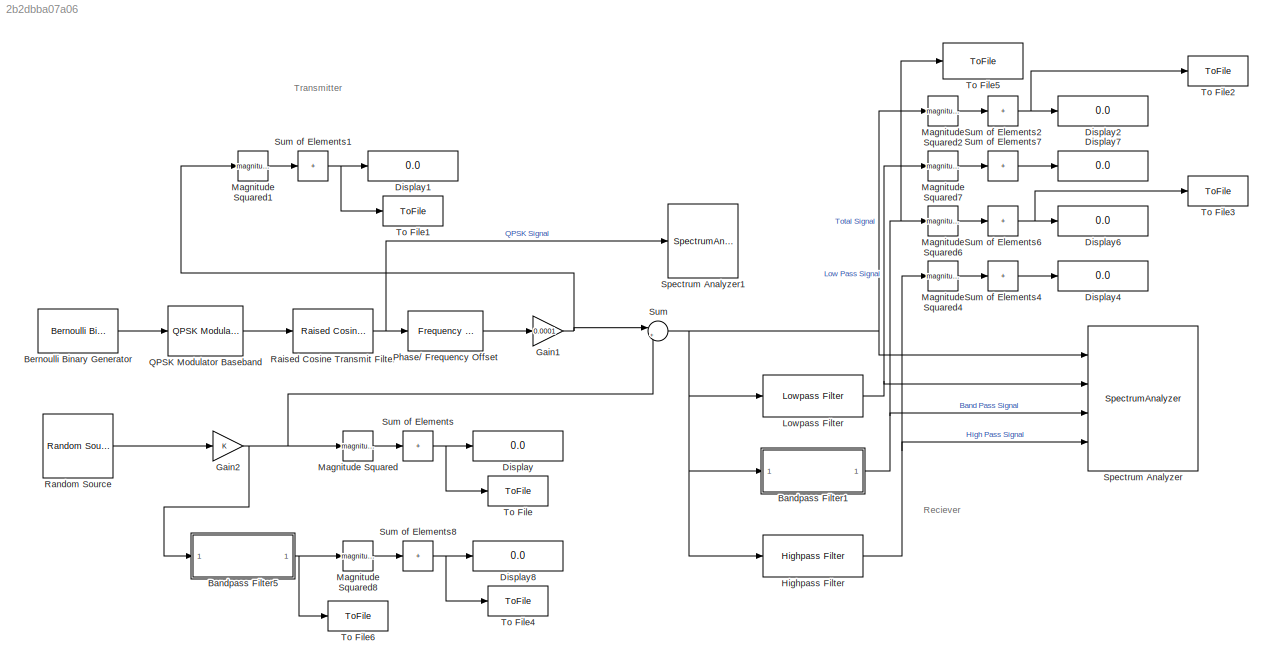
MODEL slx_2b2dbba07a06
KIND model
CONFIG AbsTol = auto
CONFIG EnableMultiTasking = off
CONFIG FixedStep = auto
CONFIG MaxStep = auto
CONFIG MinStep = auto
CONFIG RelTol = 1e-3
CONFIG SampleTimeConstraint = Unconstrained
CONFIG SolverName = FixedStepDiscrete
CONFIG StartTime = 0.0
CONFIG StopTime = 100
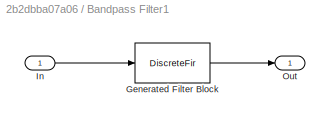
BLOCK [SubSystem] Bandpass Filter1
  CopyFcn = fdesignblkfcn(gcbh, {'CopyFcn'});
  DialogController = fdesignblkfcn
  InitFcn = fdesignblkfcn(gcbh, {'InitFcn'});
  Ports = [1, 1]
  RequestExecContextInheritance = off
  UserDataPersistent = on
BLOCK [DiscreteFir] Bandpass Filter1/Generated Filter Block
  Coefficients = [-0.00121889259374306043 -4.6471804164866279e-08 0.0022568060688219157 1.71088361680865877e-07 0.00277263523316290464 -3.91787000503089673e-07 -0.0194126295457396937 5.96679699808125005e-07 0.0393950026121096392 -6.5164419275998585e-07 -0.0344159794027284888 4.7046709147951619e-07 -0.0257306182897297508 -1.75073104912854821e-07 0.138632970079688084 -4.06676534540085174e-08 -0.253908540757038725 4....<+463ch>
  InputPortMap = u0
  InputProcessing = Columns as channels (frame based)
  OutputPortMap = o0
  Ports = [1, 1]
  Tag = BlockMethodSubSystem
BLOCK [Inport] Bandpass Filter1/In
BLOCK [Outport] Bandpass Filter1/Out
  VectorParamsAs1DForOutWhenUnconnected = off
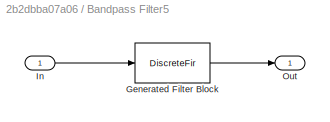
BLOCK [SubSystem] Bandpass Filter5
  CopyFcn = fdesignblkfcn(gcbh, {'CopyFcn'});
  DialogController = fdesignblkfcn
  InitFcn = fdesignblkfcn(gcbh, {'InitFcn'});
  Ports = [1, 1]
  RequestExecContextInheritance = off
  UserDataPersistent = on
BLOCK [DiscreteFir] Bandpass Filter5/Generated Filter Block
  Coefficients = [0.00732042010249847608 0.0106282918763365309 -0.00704818145835509492 -0.0139774864976023126 0.00139251813232264278 0.00103573235549302947 -0.0032720074229586559 0.00719192846207008032 0.00376555578256326622 0.00164698563023850625 0.0100490589250385037 0.00319517982739197376 0.00375186900268913246 0.0102804221955299854 0.000530639608501540564 0.00500797317880307107 0.00836056668232693263 -0.002763...<+1934ch>
  InputPortMap = u0
  InputProcessing = Columns as channels (frame based)
  OutputPortMap = o0
  Ports = [1, 1]
  Tag = BlockMethodSubSystem
BLOCK [Inport] Bandpass Filter5/In
BLOCK [Outport] Bandpass Filter5/Out
  VectorParamsAs1DForOutWhenUnconnected = off
BLOCK [Reference] Bernoulli Binary Generator  REF=commrandsrc3/Bernoulli Binary
Generator
  Ports = [0, 1]
  SourceBlock = commrandsrc3/Bernoulli Binary\nGenerator
  SourceProductBaseCode = CM
  SourceType = Bernoulli Binary Generator
BLOCK [Display] Display
  Decimation = 1
  Ports = [1]
BLOCK [Display] Display1
  Decimation = 1
  Ports = [1]
BLOCK [Display] Display2
  Decimation = 1
  Ports = [1]
BLOCK [Display] Display4
  Decimation = 1
  Ports = [1]
BLOCK [Display] Display6
  Decimation = 1
  Ports = [1]
BLOCK [Display] Display7
  Decimation = 1
  Ports = [1]
BLOCK [Display] Display8
  Decimation = 1
  Ports = [1]
BLOCK [Gain] Gain1
  Gain = 0.0001
BLOCK [Gain] Gain2
BLOCK [Reference] Highpass Filter  REF=dspfdesign/Highpass Filter
  Ports = [1, 1]
  SourceBlock = dspfdesign/Highpass Filter
  SourceProductBaseCode = DS
  SourceType = dsp.HighpassFilter
BLOCK [Reference] Lowpass Filter  REF=dspfdesign/Lowpass Filter
  Ports = [1, 1]
  SourceBlock = dspfdesign/Lowpass Filter
  SourceProductBaseCode = DS
  SourceType = dsp.LowpassFilter
BLOCK [Math] Magnitude Squared
  Operator = magnitude^2
  Ports = [1, 1]
BLOCK [Math] Magnitude Squared1
  Operator = magnitude^2
  Ports = [1, 1]
BLOCK [Math] Magnitude Squared2
  Operator = magnitude^2
  Ports = [1, 1]
BLOCK [Math] Magnitude Squared4
  Operator = magnitude^2
  Ports = [1, 1]
BLOCK [Math] Magnitude Squared6
  Operator = magnitude^2
  Ports = [1, 1]
BLOCK [Math] Magnitude Squared7
  Operator = magnitude^2
  Ports = [1, 1]
BLOCK [Math] Magnitude Squared8
  Operator = magnitude^2
  Ports = [1, 1]
BLOCK [Reference] Phase// Frequency Offset  REF=commrflib2/Phase//
Frequency
Offset
  Ports = [1, 1]
  SourceBlock = commrflib2/Phase//\nFrequency\nOffset
  SourceProductBaseCode = CM
  SourceType = Phase/Frequency Offset
BLOCK [Reference] QPSK Modulator Baseband  REF=commdigbbndpm3/QPSK
Modulator
Baseband
  Ports = [1, 1]
  SourceBlock = commdigbbndpm3/QPSK\nModulator\nBaseband
  SourceProductBaseCode = CM
  SourceType = QPSK Modulator Baseband
BLOCK [Reference] Raised Cosine Transmit Filter  REF=commfilt2/Raised Cosine
Transmit Filter
  Ports = [1, 1]
  SourceBlock = commfilt2/Raised Cosine\nTransmit Filter
  SourceProductBaseCode = CM
  SourceType = Raised Cosine Transmit Filter
  UserDataPersistent = on
BLOCK [Reference] Random Source  REF=dspsrcs4/Random
Source
  Ports = [0, 1]
  SourceBlock = dspsrcs4/Random\nSource
  SourceProductBaseCode = DS
  SourceType = Random Source
  UserDataPersistent = on
BLOCK [SpectrumAnalyzer] Spectrum Analyzer
  NumInputPorts = 4
  Ports = [4]
  ScopeSpecificationString = spbscopes.SpectrumAnalyzerBlockCfg('CurrentConfiguration', extmgr.ConfigurationSet(extmgr.Configuration('Core','General UI',true,'FigureColor',[1 1 1]),extmgr.Configuration('Core','Source UI',true),extmgr.Configuration('Sources','WiredSimulink',true),extmgr.Configuration('Visuals','Spectrum',true,'AxesProperties',struct('Color',{[1 1 1],[1 1 1]},'XColor',{[0 0 0],[0 0 0]},'YColor',{[0 0 0],[0 0 0]...<+1875ch>
BLOCK [SpectrumAnalyzer] Spectrum Analyzer1
  Ports = [1]
  ScopeSpecificationString = spbscopes.SpectrumAnalyzerBlockCfg('CurrentConfiguration', extmgr.ConfigurationSet(extmgr.Configuration('Core','General UI',true),extmgr.Configuration('Core','Source UI',true),extmgr.Configuration('Sources','WiredSimulink',true),extmgr.Configuration('Visuals','Spectrum',true,'AxesProperties',struct('Color',{[0 0 0],[0 0 0]},'XColor',{[0.686274509803922 0.686274509803922 0.686274509803922],[0.68627...<+1880ch>
BLOCK [Sum] Sum
  Inputs = |++
  Ports = [2, 1]
BLOCK [Sum] Sum of Elements
  IconShape = rectangular
  Inputs = +
  Ports = [1, 1]
BLOCK [Sum] Sum of Elements1
  IconShape = rectangular
  Inputs = +
  Ports = [1, 1]
BLOCK [Sum] Sum of Elements2
  IconShape = rectangular
  Inputs = +
  Ports = [1, 1]
BLOCK [Sum] Sum of Elements4
  IconShape = rectangular
  Inputs = +
  Ports = [1, 1]
BLOCK [Sum] Sum of Elements6
  IconShape = rectangular
  Inputs = +
  Ports = [1, 1]
BLOCK [Sum] Sum of Elements7
  IconShape = rectangular
  Inputs = +
  Ports = [1, 1]
BLOCK [Sum] Sum of Elements8
  IconShape = rectangular
  Inputs = +
  Ports = [1, 1]
BLOCK [ToFile] To File
  Filename = noise
  Ports = [1]
  SaveFormat = Timeseries
BLOCK [ToFile] To File1
  Filename = sig
  Ports = [1]
  SaveFormat = Timeseries
BLOCK [ToFile] To File2
  Filename = sig_noise
  Ports = [1]
  SaveFormat = Timeseries
BLOCK [ToFile] To File3
  Filename = sig_noise_bw
  Ports = [1]
  SaveFormat = Timeseries
BLOCK [ToFile] To File4
  Filename = noise_bw
  Ports = [1]
  SaveFormat = Timeseries
BLOCK [ToFile] To File5
  Filename = sig_noise_bw_iq
  Ports = [1]
  SaveFormat = Timeseries
BLOCK [ToFile] To File6
  Filename = noise_bw_iq
  Ports = [1]
  SaveFormat = Timeseries
ANNOTATION (root): Transmitter
ANNOTATION (root): Reciever
NET Bandpass Filter1:1 -> Magnitude Squared6:1, Spectrum Analyzer:3, To File5:1
NET Bandpass Filter5:1 -> Magnitude Squared8:1, To File6:1
LINE Bernoulli Binary Generator:1 -> QPSK Modulator Baseband:1
NET Gain1:1 -> Magnitude Squared1:1, Sum:1
NET Gain2:1 -> Bandpass Filter5:1, Magnitude Squared:1, Sum:2
NET Highpass Filter:1 -> Magnitude Squared4:1, Spectrum Analyzer:4
NET Lowpass Filter:1 -> Magnitude Squared7:1, Spectrum Analyzer:2
LINE Magnitude Squared1:1 -> Sum of Elements1:1
LINE Magnitude Squared2:1 -> Sum of Elements2:1
LINE Magnitude Squared4:1 -> Sum of Elements4:1
LINE Magnitude Squared6:1 -> Sum of Elements6:1
LINE Magnitude Squared7:1 -> Sum of Elements7:1
LINE Magnitude Squared8:1 -> Sum of Elements8:1
LINE Magnitude Squared:1 -> Sum of Elements:1
LINE Phase// Frequency Offset:1 -> Gain1:1
LINE QPSK Modulator Baseband:1 -> Raised Cosine Transmit Filter:1
NET Raised Cosine Transmit Filter:1 -> Phase// Frequency Offset:1, Spectrum Analyzer1:1
LINE Random Source:1 -> Gain2:1
NET Sum of Elements1:1 -> Display1:1, To File1:1
NET Sum of Elements2:1 -> Display2:1, To File2:1
LINE Sum of Elements4:1 -> Display4:1
NET Sum of Elements6:1 -> Display6:1, To File3:1
LINE Sum of Elements7:1 -> Display7:1
NET Sum of Elements8:1 -> Display8:1, To File4:1
NET Sum of Elements:1 -> Display:1, To File:1
NET Sum:1 -> Bandpass Filter1:1, Highpass Filter:1, Lowpass Filter:1, Magnitude Squared2:1, Spectrum Analyzer:1
note: NET lines group one-source signal fan-out (src -> all destinations, sorted); 1:1 wires keep LINE
